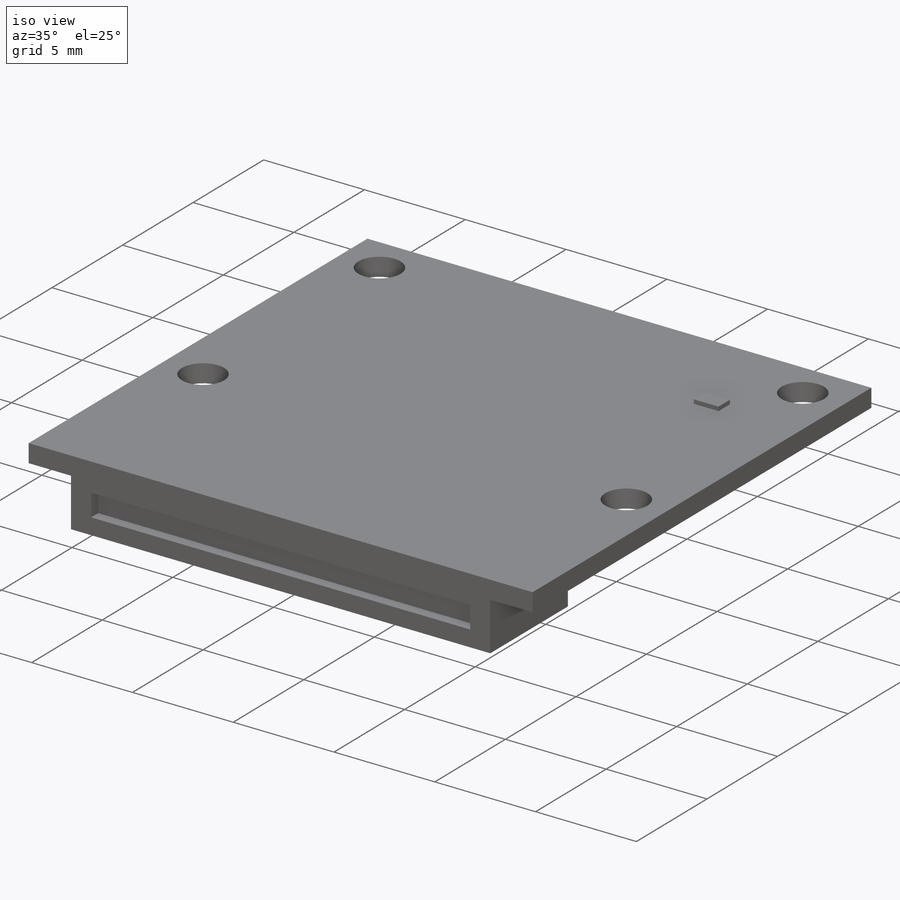
[diagram: iso view]
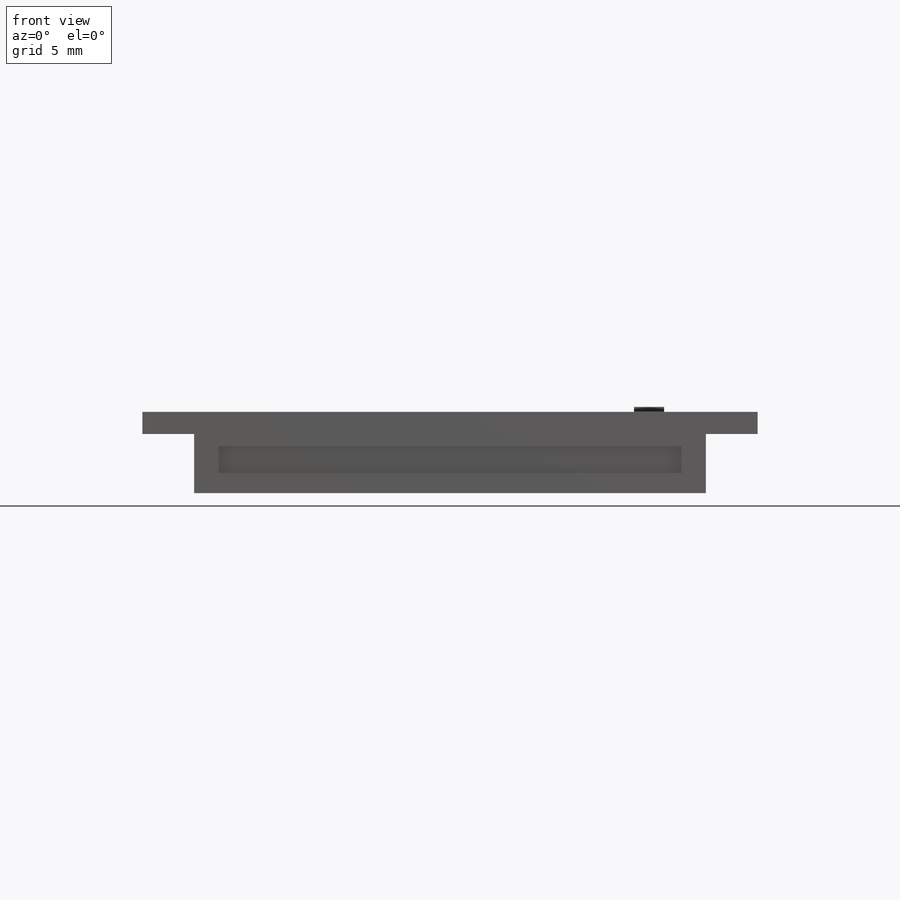
[diagram: front view]
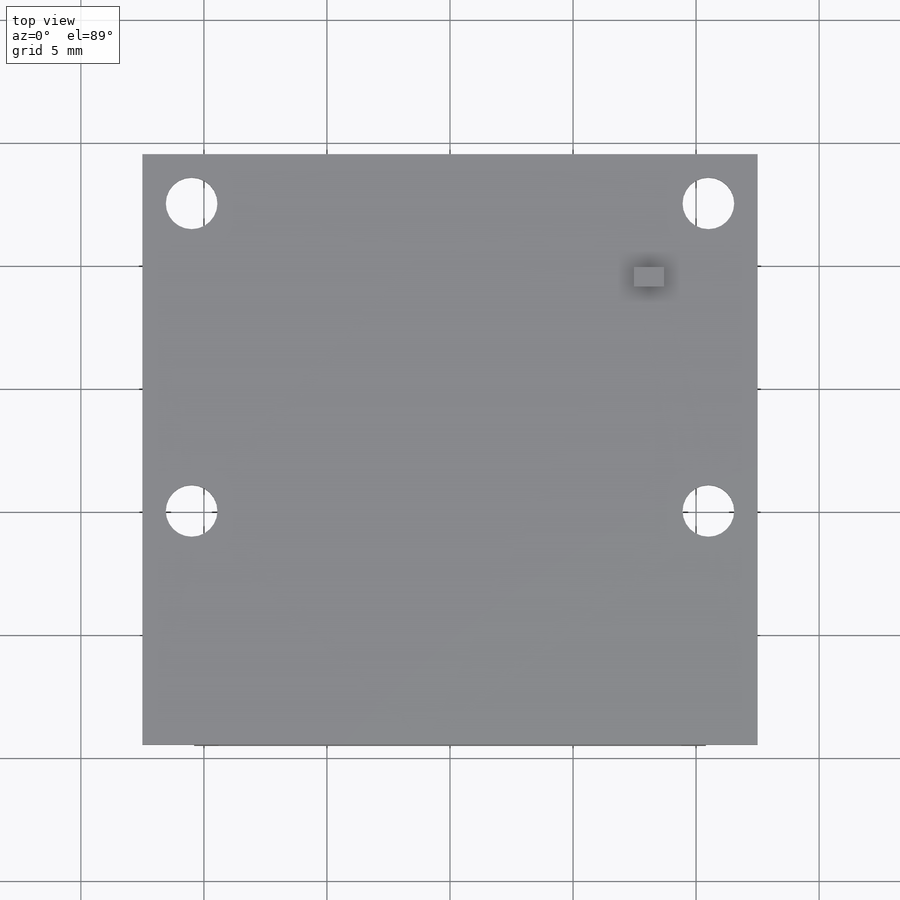
[diagram: top view]
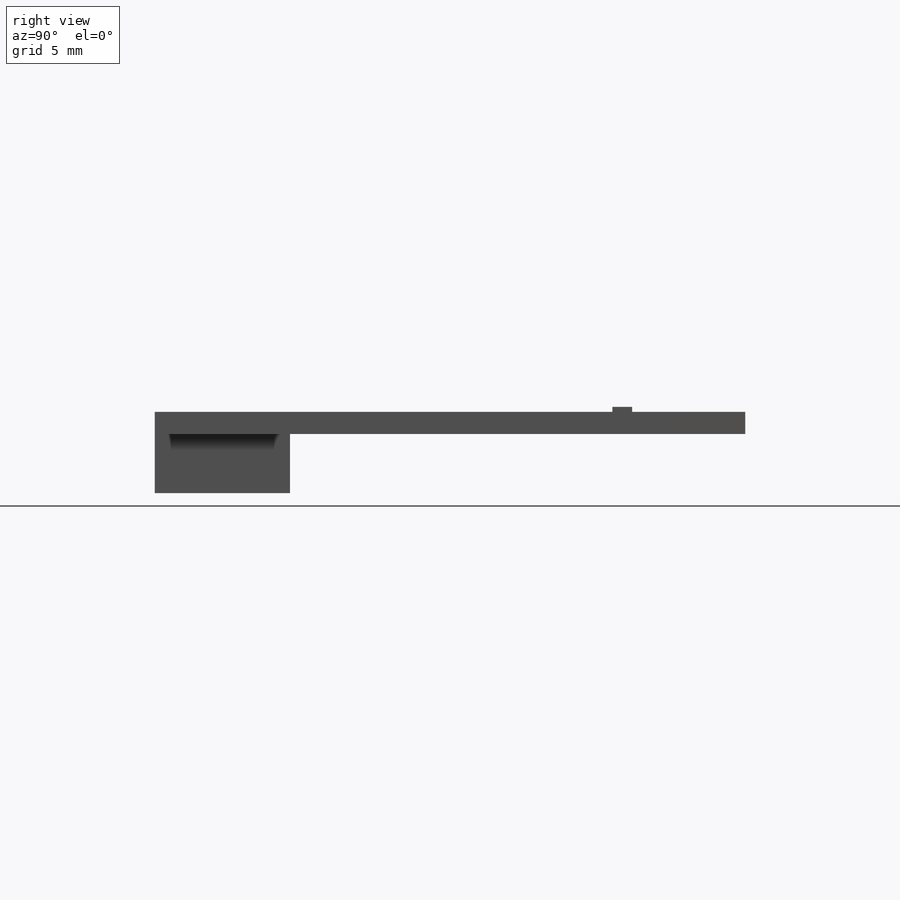
[diagram: right view]
SOLIDWORKS PART (.sldprt)
format: sldprt  version: not decoded by parser v0  size: 612,352 bytes
history: native  units: mm
features: sketch x5, plane x3, extrude x3, cut_extrude x2, material x1 (+10 scaffold rows collapsed)
feature tree (24):
  scaffold x10  (default folders/planes/origin — collapsed)
  material  "Epoxid, Ungefüllt"
  plane  "Vorne"
  plane  "Oben"
  plane  "Rechts"
  sketch  "Skizze1"  dims[c1.D1=~19.078283mm c1.D2=~19.731152mm c2.D1=24.0mm c2.D2=25.0mm c2.D3=9.5mm]
  extrude  "PCB"  Depth=0.9mm
  sketch  "Skizze2"  dims[c1.D1=2.1mm c1.D2=2.1mm c1.D3=2.1mm c2.D2=2.0mm c2.D3=2.0mm c2.D4=12.5mm c2.D5=~9.315766mm]
  cut_extrude  "Mounting_Holes"  [1 undecoded]
  sketch  "Skizze3"  dims[c1.D1=~3.044264mm c1.D2=~19.118377mm c2.D1=20.8mm c2.D2=5.5mm]
  extrude  "Connector_closed"  Depth=2.4mm
  sketch  "Esquisse1"  dims[D1=1.22mm D2=0.8mm D3=4.6mm D4=3.8mm]
  extrude  "Status LED"  Depth=0.2mm
  sketch  "Esquisse3"  dims[D1=1.0mm D2=1.0mm D3=0.8mm D4=1.4mm]
  cut_extrude  "Enlèv. mat.-Extru.1"  Depth=0.5mm
decode coverage: 9 of 10 modeling features carry decoded parameters
note: ~ marks probable driven/reference dimensions
note: 1 parameter value undecoded
note: suppression state not decoded; provenance and decode notes live in map.json
